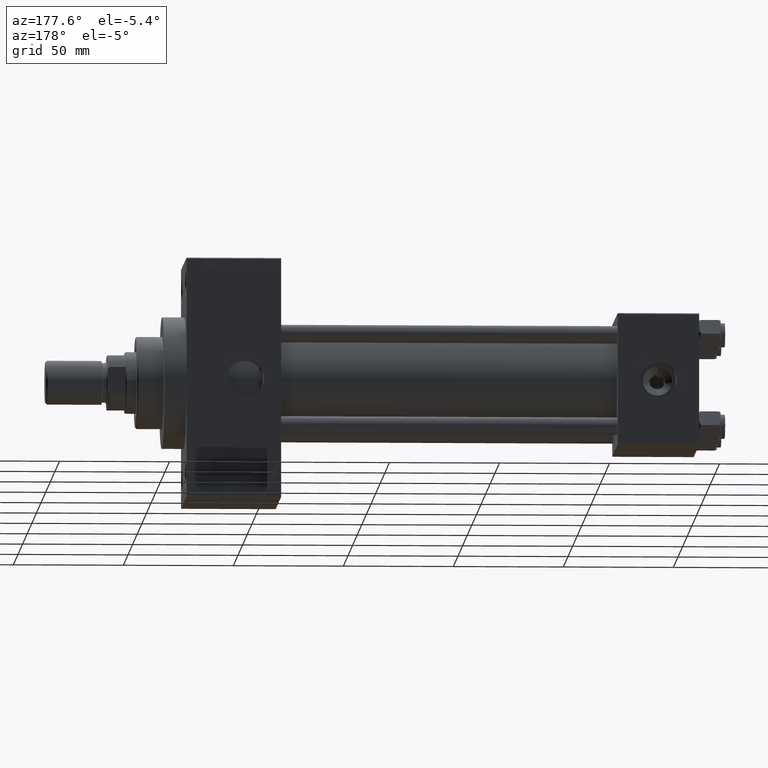
[diagram: clean part render]
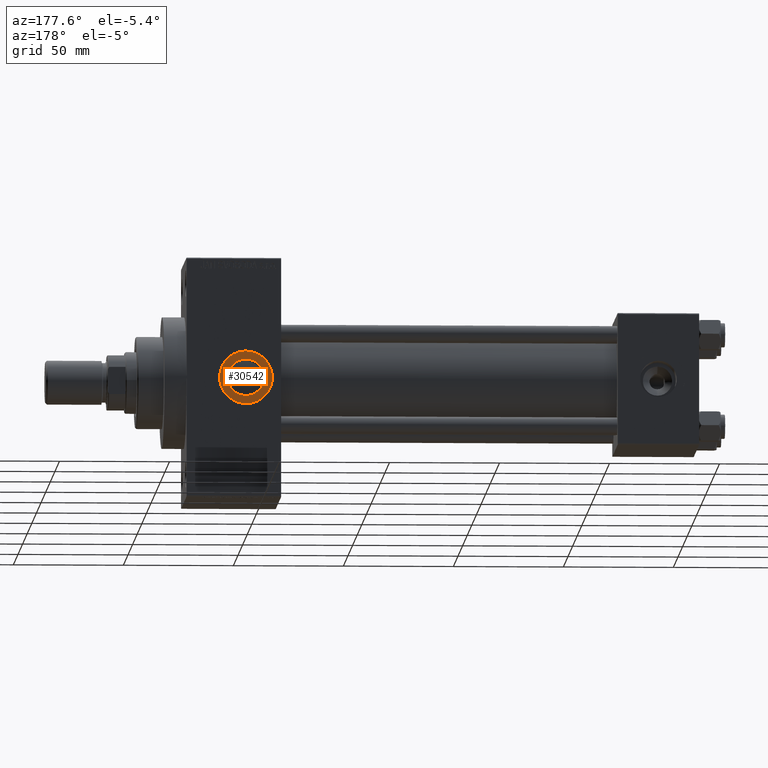
[diagram: same view with one face highlighted and labeled with its STEP entity id]
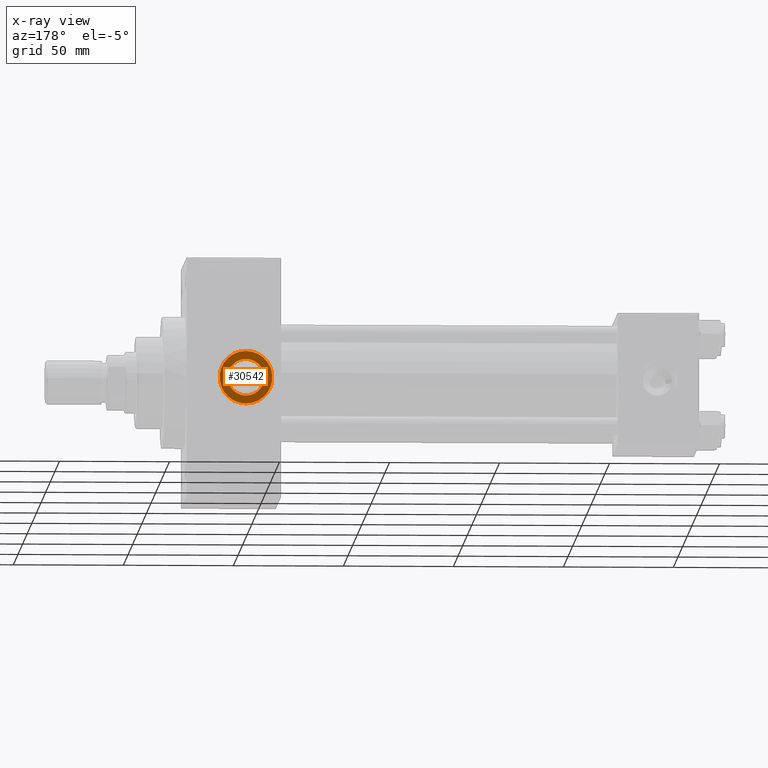
[diagram: x-ray of the same camera — body ghosted, the highlighted face saturated]
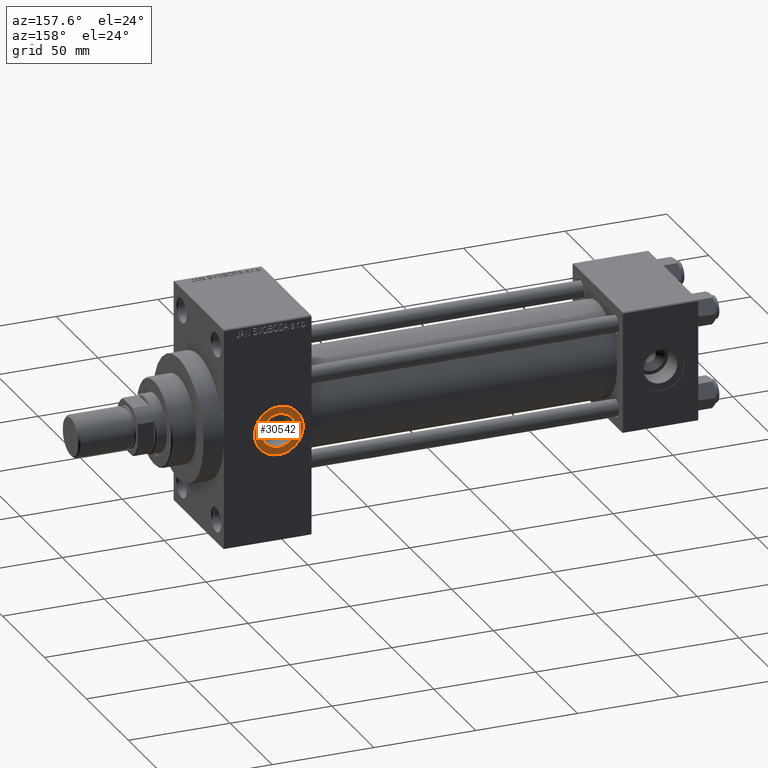
[diagram: same view with one face highlighted and labeled with its STEP entity id]
A machine part, auxiliary view. The second image highlights one B-rep face of the part: STEP entity #30542.
The next image is the same camera in x-ray: the body ghosted, the highlighted face saturated — about 0% of this face is hidden behind the body in this view.
A second angle (auxiliary view) of the same face is appended — the face is thin or edge-on in the first view.
In plain terms, the highlighted planar face has unit normal (0, 1, 0).
Its self-contained STEP definition (entity closure, byte-faithful):
#1027 = AXIS2_PLACEMENT_3D ( 'NONE', #9524, #20641, #31737 ) ;
#1845 = ORIENTED_EDGE ( 'NONE', *, *, #30380, .F. ) ;
#2063 = VERTEX_POINT ( 'NONE', #29209 ) ;
#2812 = AXIS2_PLACEMENT_3D ( 'NONE', #18337, #35996, #36461 ) ;
#3706 = DIRECTION ( 'NONE',  ( 0.000000000000000000, 1.000000000000000000, 0.000000000000000000 ) ) ;
#4434 = VERTEX_POINT ( 'NONE', #22273 ) ;
#5211 = DIRECTION ( 'NONE',  ( 0.000000000000000000, 0.000000000000000000, 1.000000000000000000 ) ) ;
#5655 = CIRCLE ( 'NONE', #1027, 8.329999999999998295 ) ;
#9498 = EDGE_LOOP ( 'NONE', ( #19498, #39573 ) ) ;
#9524 = CARTESIAN_POINT ( 'NONE',  ( 206.0000000000000284, 29.79999999999999716, 0.000000000000000000 ) ) ;
#12043 = AXIS2_PLACEMENT_3D ( 'NONE', #16189, #18216, #45181 ) ;
#12265 = CARTESIAN_POINT ( 'NONE',  ( 206.0000000000000284, 29.79999999999999716, -12.00000000000000533 ) ) ;
#14323 = DIRECTION ( 'NONE',  ( 0.000000000000000000, 0.000000000000000000, 1.000000000000000000 ) ) ;
#14469 = FACE_OUTER_BOUND ( 'NONE', #9498, .T. ) ;
#14952 = EDGE_CURVE ( 'NONE', #41206, #2063, #16284, .T. ) ;
#15864 = CIRCLE ( 'NONE', #12043, 8.329999999999998295 ) ;
#16189 = CARTESIAN_POINT ( 'NONE',  ( 206.0000000000000284, 29.79999999999999716, 0.000000000000000000 ) ) ;
#16284 = CIRCLE ( 'NONE', #17795, 12.00000000000000533 ) ;
#17795 = AXIS2_PLACEMENT_3D ( 'NONE', #22531, #3706, #14323 ) ;
#18216 = DIRECTION ( 'NONE',  ( 0.000000000000000000, 1.000000000000000000, 0.000000000000000000 ) ) ;
#18337 = CARTESIAN_POINT ( 'NONE',  ( 206.0000000000000284, 29.79999999999999716, 0.000000000000000000 ) ) ;
#18687 = CIRCLE ( 'NONE', #27934, 12.00000000000000533 ) ;
#19498 = ORIENTED_EDGE ( 'NONE', *, *, #41785, .T. ) ;
#20641 = DIRECTION ( 'NONE',  ( 0.000000000000000000, 1.000000000000000000, 0.000000000000000000 ) ) ;
#21713 = FACE_BOUND ( 'NONE', #38763, .T. ) ;
#22273 = CARTESIAN_POINT ( 'NONE',  ( 206.0000000000000284, 29.79999999999999716, -8.329999999999998295 ) ) ;
#22531 = CARTESIAN_POINT ( 'NONE',  ( 206.0000000000000284, 29.79999999999999716, 0.000000000000000000 ) ) ;
#22589 = CARTESIAN_POINT ( 'NONE',  ( 206.0000000000000284, 29.79999999999999716, 8.329999999999998295 ) ) ;
#23399 = EDGE_CURVE ( 'NONE', #36377, #4434, #5655, .T. ) ;
#27934 = AXIS2_PLACEMENT_3D ( 'NONE', #31298, #46018, #5211 ) ;
#28977 = PLANE ( 'NONE',  #2812 ) ;
#29209 = CARTESIAN_POINT ( 'NONE',  ( 206.0000000000000284, 29.79999999999999716, 12.00000000000000533 ) ) ;
#30380 = EDGE_CURVE ( 'NONE', #4434, #36377, #15864, .T. ) ;
#30542 = ADVANCED_FACE ( 'NONE', ( #21713, #14469 ), #28977, .T. ) ;
#31298 = CARTESIAN_POINT ( 'NONE',  ( 206.0000000000000284, 29.79999999999999716, 0.000000000000000000 ) ) ;
#31737 = DIRECTION ( 'NONE',  ( 0.000000000000000000, 0.000000000000000000, 1.000000000000000000 ) ) ;
#31754 = ORIENTED_EDGE ( 'NONE', *, *, #23399, .F. ) ;
#35996 = DIRECTION ( 'NONE',  ( 0.000000000000000000, 1.000000000000000000, 0.000000000000000000 ) ) ;
#36377 = VERTEX_POINT ( 'NONE', #22589 ) ;
#36461 = DIRECTION ( 'NONE',  ( 0.000000000000000000, -0.000000000000000000, 1.000000000000000000 ) ) ;
#38763 = EDGE_LOOP ( 'NONE', ( #31754, #1845 ) ) ;
#39573 = ORIENTED_EDGE ( 'NONE', *, *, #14952, .T. ) ;
#41206 = VERTEX_POINT ( 'NONE', #12265 ) ;
#41785 = EDGE_CURVE ( 'NONE', #2063, #41206, #18687, .T. ) ;
#45181 = DIRECTION ( 'NONE',  ( 0.000000000000000000, 0.000000000000000000, 1.000000000000000000 ) ) ;
#46018 = DIRECTION ( 'NONE',  ( 0.000000000000000000, 1.000000000000000000, 0.000000000000000000 ) ) ;